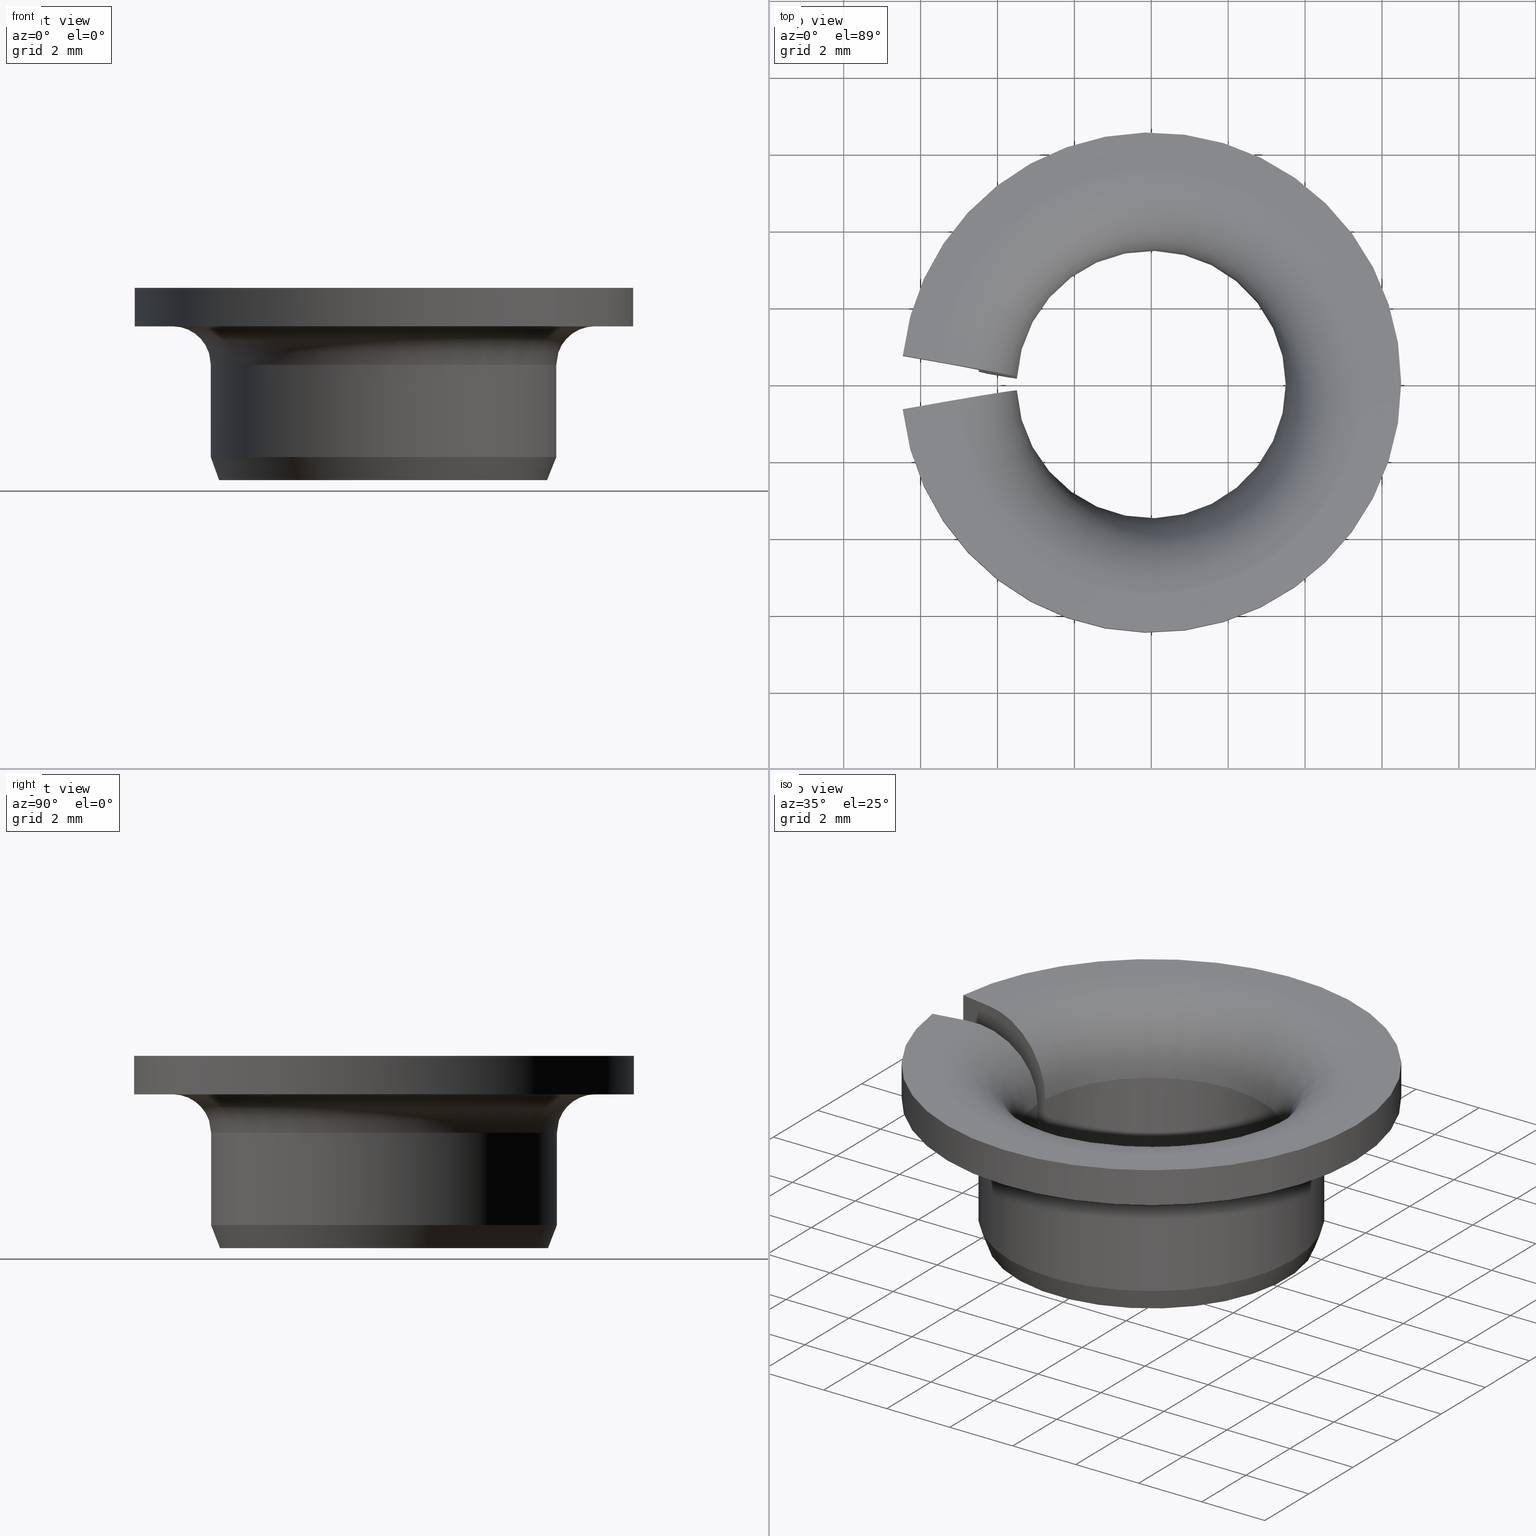
[diagram: canonical four-view strip — front | top / right | iso, engineering-drawing reading convention]
A machine part, canonical four-view strip (front | top / right | iso — engineering-drawing reading convention). The complete STEP part file that produces these views, byte-faithful:
ISO-10303-21;
HEADER;
FILE_DESCRIPTION(('STEP AP203'),'1');
FILE_NAME('410-BM0705F13LMB.stp','2016-09-19T20:50:53',(' '),(' '),'Spatial InterOp 3D',' ',' ');
FILE_SCHEMA(('CONFIG_CONTROL_DESIGN'));
ENDSEC;
DATA;
#1=DESIGN_CONTEXT('',#51,'design');
#2=APPLICATION_PROTOCOL_DEFINITION('INTERNATIONAL STANDARD','config_control_design',1994,#51);
#3=PRODUCT_CATEGORY_RELATIONSHIP('NONE','NONE',#52,#53);
#4=DATE_AND_TIME(#54,#55);
#5=DATE_TIME_ROLE('creation_date');
#6=DATE_TIME_ROLE('classification_date');
#7=PERSON_AND_ORGANIZATION_ROLE('creator');
#8=PERSON_AND_ORGANIZATION_ROLE('design_supplier');
#9=PERSON_AND_ORGANIZATION_ROLE('classification_officer');
#10=PERSON_AND_ORGANIZATION_ROLE('design_owner');
#11=APPROVAL_PERSON_ORGANIZATION(#56,#57,#58);
#12=APPROVAL_DATE_TIME(#4,#57);
#13=CC_DESIGN_APPROVAL(#57,(#59,#60,#61));
#14=CC_DESIGN_DATE_AND_TIME_ASSIGNMENT(#4,#5,(#61));
#15=CC_DESIGN_DATE_AND_TIME_ASSIGNMENT(#4,#6,(#59));
#16=CC_DESIGN_PERSON_AND_ORGANIZATION_ASSIGNMENT(#56,#10,(#62));
#17=CC_DESIGN_PERSON_AND_ORGANIZATION_ASSIGNMENT(#56,#7,(#61));
#18=CC_DESIGN_PERSON_AND_ORGANIZATION_ASSIGNMENT(#56,#7,(#60));
#19=CC_DESIGN_PERSON_AND_ORGANIZATION_ASSIGNMENT(#56,#8,(#60));
#20=CC_DESIGN_SECURITY_CLASSIFICATION(#59,(#60));
#21=CC_DESIGN_PERSON_AND_ORGANIZATION_ASSIGNMENT(#56,#9,(#59));
#22=SHAPE_DEFINITION_REPRESENTATION(#63,#64);
#23=DESIGN_CONTEXT('',#65,'design');
#24=APPLICATION_PROTOCOL_DEFINITION('INTERNATIONAL STANDARD','config_control_design',1994,#65);
#25=PRODUCT_CATEGORY_RELATIONSHIP('NONE','NONE',#66,#67);
#26=DATE_AND_TIME(#68,#69);
#27=DATE_TIME_ROLE('creation_date');
#28=DATE_TIME_ROLE('classification_date');
#29=PERSON_AND_ORGANIZATION_ROLE('creator');
#30=PERSON_AND_ORGANIZATION_ROLE('design_supplier');
#31=PERSON_AND_ORGANIZATION_ROLE('classification_officer');
#32=PERSON_AND_ORGANIZATION_ROLE('design_owner');
#33=APPROVAL_PERSON_ORGANIZATION(#70,#71,#72);
#34=APPROVAL_DATE_TIME(#26,#71);
#35=CC_DESIGN_APPROVAL(#71,(#73,#74,#75));
#36=CC_DESIGN_DATE_AND_TIME_ASSIGNMENT(#26,#27,(#75));
#37=CC_DESIGN_DATE_AND_TIME_ASSIGNMENT(#26,#28,(#73));
#38=CC_DESIGN_PERSON_AND_ORGANIZATION_ASSIGNMENT(#70,#32,(#76));
#39=CC_DESIGN_PERSON_AND_ORGANIZATION_ASSIGNMENT(#70,#29,(#75));
#40=CC_DESIGN_PERSON_AND_ORGANIZATION_ASSIGNMENT(#70,#29,(#74));
#41=CC_DESIGN_PERSON_AND_ORGANIZATION_ASSIGNMENT(#70,#30,(#74));
#42=CC_DESIGN_SECURITY_CLASSIFICATION(#73,(#74));
#43=CC_DESIGN_PERSON_AND_ORGANIZATION_ASSIGNMENT(#70,#31,(#73));
#44=CONTEXT_DEPENDENT_SHAPE_REPRESENTATION(#77,#78);
#45=SHAPE_DEFINITION_REPRESENTATION(#79,#80);
#46=SHAPE_REPRESENTATION_RELATIONSHIP('NONE','NONE',#80,#81);
#47= (GEOMETRIC_REPRESENTATION_CONTEXT(3)GLOBAL_UNCERTAINTY_ASSIGNED_CONTEXT((#84))GLOBAL_UNIT_ASSIGNED_CONTEXT((#86,#87,#88))REPRESENTATION_CONTEXT('NONE','WORKSPACE'));
#51=APPLICATION_CONTEXT('CONFIGURATION CONTROLLED 3D DESIGNS OF MECHANICAL PARTS AND ASSEMBLIES');
#52=PRODUCT_CATEGORY('part','NONE');
#53=PRODUCT_RELATED_PRODUCT_CATEGORY('detail',' ',(#62));
#54=CALENDAR_DATE(2016,19,8);
#55=LOCAL_TIME(22,50,53.0,#90);
#56=PERSON_AND_ORGANIZATION(#91,#92);
#57=APPROVAL(#93,'SOLID MODEL');
#58=APPROVAL_ROLE('APPROVED');
#59=SECURITY_CLASSIFICATION('','',#94);
#60=PRODUCT_DEFINITION_FORMATION_WITH_SPECIFIED_SOURCE(' ','NONE',#62,.NOT_KNOWN.);
#61=PRODUCT_DEFINITION('NONE','NONE',#60,#1);
#62=PRODUCT('','','PART--DESC',(#95));
#63=PRODUCT_DEFINITION_SHAPE('NONE','NONE',#61);
#64=SHAPE_REPRESENTATION('',(#96,#97),#98);
#65=APPLICATION_CONTEXT('CONFIGURATION CONTROLLED 3D DESIGNS OF MECHANICAL PARTS AND ASSEMBLIES');
#66=PRODUCT_CATEGORY('part','NONE');
#67=PRODUCT_RELATED_PRODUCT_CATEGORY('detail',' ',(#76));
#68=CALENDAR_DATE(2016,19,8);
#69=LOCAL_TIME(22,50,53.0,#99);
#70=PERSON_AND_ORGANIZATION(#100,#101);
#71=APPROVAL(#102,'SOLID MODEL');
#72=APPROVAL_ROLE('APPROVED');
#73=SECURITY_CLASSIFICATION('','',#103);
#74=PRODUCT_DEFINITION_FORMATION_WITH_SPECIFIED_SOURCE(' ','NONE',#76,.NOT_KNOWN.);
#75=PRODUCT_DEFINITION('410-BM0705F13LMB','410-BM0705F13LMB',#74,#23);
#76=PRODUCT('410-BM0705F13LMB','410-BM0705F13LMB','PART-410-BM0705F13LMB-DESC',(#104));
#77=(REPRESENTATION_RELATIONSHIP('','',#80,#64)REPRESENTATION_RELATIONSHIP_WITH_TRANSFORMATION(#107)SHAPE_REPRESENTATION_RELATIONSHIP());
#78=PRODUCT_DEFINITION_SHAPE('NAUO-PROD-DEF','NAUO-PROD-DEF',#109);
#79=PRODUCT_DEFINITION_SHAPE('NONE','NONE',#75);
#80=SHAPE_REPRESENTATION('410-BM0705F13LMB',(#96),#98);
#81=ADVANCED_BREP_SHAPE_REPRESENTATION('',(#110),#47);
#84=UNCERTAINTY_MEASURE_WITH_UNIT(LENGTH_MEASURE(1.0E-006),#86,'','');
#86= (CONVERSION_BASED_UNIT('METRE',#113)LENGTH_UNIT()NAMED_UNIT(#116));
#87= (NAMED_UNIT(#118)PLANE_ANGLE_UNIT()SI_UNIT($,.RADIAN.));
#88= (NAMED_UNIT(#118)SOLID_ANGLE_UNIT()SI_UNIT($,.STERADIAN.));
#90=COORDINATED_UNIVERSAL_TIME_OFFSET(1,0,.AHEAD.);
#91=PERSON('','UNSPECIFIED',$,$,$,$);
#92=ORGANIZATION('UNSPECIFIED','UNSPECIFIED','UNSPECIFIED');
#93=APPROVAL_STATUS('approved');
#94=SECURITY_CLASSIFICATION_LEVEL('unclassified');
#95=MECHANICAL_CONTEXT('',#51,'mechanical');
#96=AXIS2_PLACEMENT_3D('',#124,#125,#126);
#97=AXIS2_PLACEMENT_3D('',#127,#128,#129);
#98= (GEOMETRIC_REPRESENTATION_CONTEXT(3)GLOBAL_UNCERTAINTY_ASSIGNED_CONTEXT((#132))GLOBAL_UNIT_ASSIGNED_CONTEXT((#134,#135,#136))REPRESENTATION_CONTEXT('NONE','WORKSPACE'));
#99=COORDINATED_UNIVERSAL_TIME_OFFSET(1,0,.AHEAD.);
#100=PERSON('','UNSPECIFIED',$,$,$,$);
#101=ORGANIZATION('UNSPECIFIED','UNSPECIFIED','UNSPECIFIED');
#102=APPROVAL_STATUS('approved');
#103=SECURITY_CLASSIFICATION_LEVEL('unclassified');
#104=MECHANICAL_CONTEXT('',#65,'mechanical');
#107=ITEM_DEFINED_TRANSFORMATION('','',#96,#97);
#109=NEXT_ASSEMBLY_USAGE_OCCURRENCE('410-BM0705F13LMB','410-BM0705F13LMB','410-BM0705F13LMB',#61,#75,$);
#110=MANIFOLD_SOLID_BREP('',#138);
#113=LENGTH_MEASURE_WITH_UNIT(LENGTH_MEASURE(1.0),#139);
#116=DIMENSIONAL_EXPONENTS(1.0,0.0,0.0,0.0,0.0,0.0,0.0);
#118=DIMENSIONAL_EXPONENTS(0.0,0.0,0.0,0.0,0.0,0.0,0.0);
#124=CARTESIAN_POINT('',(0.0,0.0,0.0));
#125=DIRECTION('',(0.0,0.0,1.0));
#126=DIRECTION('',(1.0,0.0,0.0));
#127=CARTESIAN_POINT('',(0.0,0.0,0.0));
#128=DIRECTION('',(0.0,0.0,1.0));
#129=DIRECTION('',(-1.0,-7.6571373978539E-016,0.0));
#132=UNCERTAINTY_MEASURE_WITH_UNIT(LENGTH_MEASURE(1.0E-006),#134,'','');
#134= (CONVERSION_BASED_UNIT('METRE',#142)LENGTH_UNIT()NAMED_UNIT(#145));
#135= (NAMED_UNIT(#147)PLANE_ANGLE_UNIT()SI_UNIT($,.RADIAN.));
#136= (NAMED_UNIT(#147)SOLID_ANGLE_UNIT()SI_UNIT($,.STERADIAN.));
#138=CLOSED_SHELL('',(#153,#154,#155,#156,#157,#158,#159,#160,#161,#162,#163,#164));
#139= (NAMED_UNIT(#116)LENGTH_UNIT()SI_UNIT($,.METRE.));
#142=LENGTH_MEASURE_WITH_UNIT(LENGTH_MEASURE(1.0),#166);
#145=DIMENSIONAL_EXPONENTS(1.0,0.0,0.0,0.0,0.0,0.0,0.0);
#147=DIMENSIONAL_EXPONENTS(0.0,0.0,0.0,0.0,0.0,0.0,0.0);
#153=ADVANCED_FACE('',(#167),#168,.F.);
#154=ADVANCED_FACE('',(#169),#170,.F.);
#155=ADVANCED_FACE('',(#171),#172,.T.);
#156=ADVANCED_FACE('',(#173),#174,.F.);
#157=ADVANCED_FACE('',(#175),#176,.T.);
#158=ADVANCED_FACE('',(#177),#178,.T.);
#159=ADVANCED_FACE('',(#179),#180,.T.);
#160=ADVANCED_FACE('',(#181),#182,.T.);
#161=ADVANCED_FACE('',(#183),#184,.F.);
#162=ADVANCED_FACE('',(#185),#186,.T.);
#163=ADVANCED_FACE('',(#187),#188,.T.);
#164=ADVANCED_FACE('',(#189),#190,.T.);
#166= (NAMED_UNIT(#145)LENGTH_UNIT()SI_UNIT($,.METRE.));
#167=FACE_OUTER_BOUND('',#192,.T.);
#168=PLANE('',#193);
#169=FACE_OUTER_BOUND('',#194,.T.);
#170=CONICAL_SURFACE('',#195,0.0035,0.523598775598298);
#171=FACE_OUTER_BOUND('',#196,.T.);
#172=TOROIDAL_SURFACE('',#197,0.0055,0.002);
#173=FACE_OUTER_BOUND('',#198,.T.);
#174=TOROIDAL_SURFACE('',#199,0.0055,0.001);
#175=FACE_OUTER_BOUND('',#200,.T.);
#176=PLANE('',#201);
#177=FACE_OUTER_BOUND('',#202,.T.);
#178=CYLINDRICAL_SURFACE('',#203,0.0065);
#179=FACE_OUTER_BOUND('',#204,.T.);
#180=PLANE('',#205);
#181=FACE_OUTER_BOUND('',#206,.T.);
#182=CYLINDRICAL_SURFACE('',#207,0.0045);
#183=FACE_OUTER_BOUND('',#208,.T.);
#184=CYLINDRICAL_SURFACE('',#209,0.0035);
#185=FACE_OUTER_BOUND('',#210,.T.);
#186=PLANE('',#211);
#187=FACE_OUTER_BOUND('',#212,.T.);
#188=CONICAL_SURFACE('',#213,0.00428161785944028,0.349065850398864);
#189=FACE_OUTER_BOUND('',#214,.T.);
#190=PLANE('',#215);
#192=EDGE_LOOP('',(#216,#217,#218,#219,#220,#221,#222,#223,#224,#225));
#193=AXIS2_PLACEMENT_3D('',#226,#227,#228);
#194=EDGE_LOOP('',(#229,#230,#231,#232));
#195=AXIS2_PLACEMENT_3D('',#233,#234,#235);
#196=EDGE_LOOP('',(#236,#237,#238,#239));
#197=AXIS2_PLACEMENT_3D('',#240,#241,#242);
#198=EDGE_LOOP('',(#243,#244,#245,#246));
#199=AXIS2_PLACEMENT_3D('',#247,#248,#249);
#200=EDGE_LOOP('',(#250,#251,#252,#253));
#201=AXIS2_PLACEMENT_3D('',#254,#255,#256);
#202=EDGE_LOOP('',(#257,#258,#259,#260));
#203=AXIS2_PLACEMENT_3D('',#261,#262,#263);
#204=EDGE_LOOP('',(#264,#265,#266,#267));
#205=AXIS2_PLACEMENT_3D('',#268,#269,#270);
#206=EDGE_LOOP('',(#271,#272,#273,#274));
#207=AXIS2_PLACEMENT_3D('',#275,#276,#277);
#208=EDGE_LOOP('',(#278,#279,#280,#281));
#209=AXIS2_PLACEMENT_3D('',#282,#283,#284);
#210=EDGE_LOOP('',(#285,#286,#287,#288));
#211=AXIS2_PLACEMENT_3D('',#289,#290,#291);
#212=EDGE_LOOP('',(#292,#293,#294,#295));
#213=AXIS2_PLACEMENT_3D('',#296,#297,#298);
#214=EDGE_LOOP('',(#299,#300,#301,#302,#303,#304,#305,#306,#307,#308));
#215=AXIS2_PLACEMENT_3D('',#309,#310,#311);
#216=ORIENTED_EDGE('',*,*,#312,.T.);
#217=ORIENTED_EDGE('',*,*,#313,.F.);
#218=ORIENTED_EDGE('',*,*,#314,.T.);
#219=ORIENTED_EDGE('',*,*,#315,.T.);
#220=ORIENTED_EDGE('',*,*,#316,.T.);
#221=ORIENTED_EDGE('',*,*,#317,.T.);
#222=ORIENTED_EDGE('',*,*,#318,.T.);
#223=ORIENTED_EDGE('',*,*,#319,.F.);
#224=ORIENTED_EDGE('',*,*,#320,.T.);
#225=ORIENTED_EDGE('',*,*,#321,.T.);
#226=CARTESIAN_POINT('',(-0.00820955855681633,0.00188838412504393,0.0));
#227=DIRECTION('',(-0.173648177666931,-0.984807753012208,-0.0));
#228=DIRECTION('',(0.0,0.0,-1.0));
#229=ORIENTED_EDGE('',*,*,#322,.T.);
#230=ORIENTED_EDGE('',*,*,#323,.T.);
#231=ORIENTED_EDGE('',*,*,#324,.F.);
#232=ORIENTED_EDGE('',*,*,#320,.F.);
#233=CARTESIAN_POINT('',(0.0,0.0,0.0003));
#234=DIRECTION('',(0.0,-6.12323399573677E-017,-1.0));
#235=DIRECTION('',(0.0,1.0,-6.12323399573677E-017));
#236=ORIENTED_EDGE('',*,*,#325,.T.);
#237=ORIENTED_EDGE('',*,*,#326,.T.);
#238=ORIENTED_EDGE('',*,*,#327,.F.);
#239=ORIENTED_EDGE('',*,*,#312,.F.);
#240=CARTESIAN_POINT('',(0.0,0.0,0.003));
#241=DIRECTION('',(0.0,-6.12323399573677E-017,-1.0));
#242=DIRECTION('',(0.0,1.0,-6.12323399573677E-017));
#243=ORIENTED_EDGE('',*,*,#328,.T.);
#244=ORIENTED_EDGE('',*,*,#329,.T.);
#245=ORIENTED_EDGE('',*,*,#330,.F.);
#246=ORIENTED_EDGE('',*,*,#316,.F.);
#247=CARTESIAN_POINT('',(0.0,0.0,0.003));
#248=DIRECTION('',(0.0,-6.12323399573677E-017,-1.0));
#249=DIRECTION('',(0.0,1.0,-6.12323399573677E-017));
#250=ORIENTED_EDGE('',*,*,#331,.T.);
#251=ORIENTED_EDGE('',*,*,#332,.T.);
#252=ORIENTED_EDGE('',*,*,#328,.F.);
#253=ORIENTED_EDGE('',*,*,#315,.F.);
#254=CARTESIAN_POINT('',(0.0055,0.0,0.004));
#255=DIRECTION('',(0.0,-6.12323399573677E-017,-1.0));
#256=DIRECTION('',(0.0,1.0,-6.12323399573677E-017));
#257=ORIENTED_EDGE('',*,*,#333,.T.);
#258=ORIENTED_EDGE('',*,*,#334,.T.);
#259=ORIENTED_EDGE('',*,*,#331,.F.);
#260=ORIENTED_EDGE('',*,*,#314,.F.);
#261=CARTESIAN_POINT('',(0.0,0.0,0.0));
#262=DIRECTION('',(0.0,-6.12323399573677E-017,-1.0));
#263=DIRECTION('',(0.0,1.0,-6.12323399573677E-017));
#264=ORIENTED_EDGE('',*,*,#327,.T.);
#265=ORIENTED_EDGE('',*,*,#335,.F.);
#266=ORIENTED_EDGE('',*,*,#333,.F.);
#267=ORIENTED_EDGE('',*,*,#313,.T.);
#268=CARTESIAN_POINT('',(0.0065,0.0,0.005));
#269=DIRECTION('',(0.0,6.12323399573677E-017,1.0));
#270=DIRECTION('',(0.0,-1.0,6.12323399573677E-017));
#271=ORIENTED_EDGE('',*,*,#330,.T.);
#272=ORIENTED_EDGE('',*,*,#336,.T.);
#273=ORIENTED_EDGE('',*,*,#337,.F.);
#274=ORIENTED_EDGE('',*,*,#317,.F.);
#275=CARTESIAN_POINT('',(0.0,0.0,0.0));
#276=DIRECTION('',(0.0,-6.12323399573677E-017,-1.0));
#277=DIRECTION('',(0.0,1.0,-6.12323399573677E-017));
#278=ORIENTED_EDGE('',*,*,#324,.T.);
#279=ORIENTED_EDGE('',*,*,#338,.T.);
#280=ORIENTED_EDGE('',*,*,#325,.F.);
#281=ORIENTED_EDGE('',*,*,#321,.F.);
#282=CARTESIAN_POINT('',(0.0,0.0,0.0));
#283=DIRECTION('',(0.0,-6.12323399573677E-017,-1.0));
#284=DIRECTION('',(0.0,1.0,-6.12323399573677E-017));
#285=ORIENTED_EDGE('',*,*,#339,.T.);
#286=ORIENTED_EDGE('',*,*,#340,.F.);
#287=ORIENTED_EDGE('',*,*,#322,.F.);
#288=ORIENTED_EDGE('',*,*,#319,.T.);
#289=CARTESIAN_POINT('',(0.00367320508075689,0.0,0.0));
#290=DIRECTION('',(0.0,-6.12323399573677E-017,-1.0));
#291=DIRECTION('',(0.0,1.0,-6.12323399573677E-017));
#292=ORIENTED_EDGE('',*,*,#337,.T.);
#293=ORIENTED_EDGE('',*,*,#341,.T.);
#294=ORIENTED_EDGE('',*,*,#339,.F.);
#295=ORIENTED_EDGE('',*,*,#318,.F.);
#296=CARTESIAN_POINT('',(0.0,0.0,0.0));
#297=DIRECTION('',(-0.0,6.12323399573677E-017,1.0));
#298=DIRECTION('',(0.0,-1.0,6.12323399573677E-017));
#299=ORIENTED_EDGE('',*,*,#338,.F.);
#300=ORIENTED_EDGE('',*,*,#323,.F.);
#301=ORIENTED_EDGE('',*,*,#340,.T.);
#302=ORIENTED_EDGE('',*,*,#341,.F.);
#303=ORIENTED_EDGE('',*,*,#336,.F.);
#304=ORIENTED_EDGE('',*,*,#329,.F.);
#305=ORIENTED_EDGE('',*,*,#332,.F.);
#306=ORIENTED_EDGE('',*,*,#334,.F.);
#307=ORIENTED_EDGE('',*,*,#335,.T.);
#308=ORIENTED_EDGE('',*,*,#326,.F.);
#309=CARTESIAN_POINT('',(-0.00820955855681633,-0.00188838412504393,2.27746992961017E-019));
#310=DIRECTION('',(0.173648177666931,-0.984807753012208,-3.69276194597514E-018));
#311=DIRECTION('',(-2.12657684957577E-017,-6.03423532709537E-033,-1.0));
#312=EDGE_CURVE('',#342,#343,#344,.T.);
#313=EDGE_CURVE('',#345,#343,#346,.T.);
#314=EDGE_CURVE('',#345,#347,#348,.T.);
#315=EDGE_CURVE('',#347,#349,#350,.T.);
#316=EDGE_CURVE('',#349,#351,#352,.T.);
#317=EDGE_CURVE('',#351,#353,#354,.T.);
#318=EDGE_CURVE('',#353,#355,#356,.T.);
#319=EDGE_CURVE('',#357,#355,#358,.T.);
#320=EDGE_CURVE('',#357,#359,#360,.T.);
#321=EDGE_CURVE('',#359,#342,#361,.F.);
#322=EDGE_CURVE('',#357,#362,#363,.T.);
#323=EDGE_CURVE('',#362,#364,#365,.T.);
#324=EDGE_CURVE('',#359,#364,#366,.T.);
#325=EDGE_CURVE('',#342,#367,#368,.T.);
#326=EDGE_CURVE('',#367,#369,#370,.T.);
#327=EDGE_CURVE('',#343,#369,#371,.T.);
#328=EDGE_CURVE('',#349,#372,#373,.T.);
#329=EDGE_CURVE('',#372,#374,#375,.T.);
#330=EDGE_CURVE('',#351,#374,#376,.T.);
#331=EDGE_CURVE('',#347,#377,#378,.T.);
#332=EDGE_CURVE('',#377,#372,#379,.T.);
#333=EDGE_CURVE('',#345,#380,#381,.T.);
#334=EDGE_CURVE('',#380,#377,#382,.T.);
#335=EDGE_CURVE('',#380,#369,#383,.T.);
#336=EDGE_CURVE('',#374,#384,#385,.T.);
#337=EDGE_CURVE('',#353,#384,#386,.T.);
#338=EDGE_CURVE('',#364,#367,#387,.F.);
#339=EDGE_CURVE('',#355,#388,#389,.T.);
#340=EDGE_CURVE('',#362,#388,#390,.T.);
#341=EDGE_CURVE('',#384,#388,#391,.T.);
#342=VERTEX_POINT('',#392);
#343=VERTEX_POINT('',#393);
#344=B_SPLINE_CURVE_WITH_KNOTS('',3,(#394,#395,#396,#397,#398,#399,#400,#401,#402,#403,#404,#405,#406,#407),.UNSPECIFIED.,.F.,.F.,(4,2,2,2,2,2,4),(1.97150682175314E-007,0.000391667994127723,0.00078313883757327,0.00117460968101882,0.00156608052446437,0.00234902221135546,0.00313196389824656),.UNSPECIFIED.);
#345=VERTEX_POINT('',#408);
#346=LINE('',#409,#410);
#347=VERTEX_POINT('',#411);
#348=LINE('',#412,#413);
#349=VERTEX_POINT('',#414);
#350=LINE('',#415,#416);
#351=VERTEX_POINT('',#417);
#352=B_SPLINE_CURVE_WITH_KNOTS('',3,(#418,#419,#420,#421,#422,#423,#424,#425,#426,#427),.UNSPECIFIED.,.F.,.F.,(4,2,2,2,4),(2.53526387980243E-005,0.000416688694121858,0.00080802474944569,0.00119936080476952,0.00159069686009336),.UNSPECIFIED.);
#353=VERTEX_POINT('',#428);
#354=LINE('',#429,#430);
#355=VERTEX_POINT('',#431);
#356=B_SPLINE_CURVE_WITH_KNOTS('',3,(#432,#433,#434,#435),.UNSPECIFIED.,.F.,.F.,(4,4),(2.12952462716734E-007,0.000639088410974761),.UNSPECIFIED.);
#357=VERTEX_POINT('',#436);
#358=LINE('',#437,#438);
#359=VERTEX_POINT('',#439);
#360=B_SPLINE_CURVE_WITH_KNOTS('',3,(#440,#441,#442,#443),.UNSPECIFIED.,.F.,.F.,(4,4),(2.31348660055754E-007,0.000347285118936429),.UNSPECIFIED.);
#361=LINE('',#444,#445);
#362=VERTEX_POINT('',#446);
#363=CIRCLE('',#447,0.00367320508075689);
#364=VERTEX_POINT('',#448);
#365=B_SPLINE_CURVE_WITH_KNOTS('',3,(#449,#450,#451,#452),.UNSPECIFIED.,.F.,.F.,(4,4),(2.31348660055976E-007,0.000347285118936429),.UNSPECIFIED.);
#366=CIRCLE('',#453,0.0035);
#367=VERTEX_POINT('',#454);
#368=CIRCLE('',#455,0.0035);
#369=VERTEX_POINT('',#456);
#370=B_SPLINE_CURVE_WITH_KNOTS('',3,(#457,#458,#459,#460,#461,#462,#463,#464,#465,#466,#467,#468,#469,#470),.UNSPECIFIED.,.F.,.F.,(4,2,2,2,2,2,4),(1.97150682175314E-007,0.000391667994127723,0.00078313883757327,0.00117460968101882,0.00156608052446437,0.00234902221135546,0.00313196389824656),.UNSPECIFIED.);
#371=CIRCLE('',#471,0.0055);
#372=VERTEX_POINT('',#472);
#373=CIRCLE('',#473,0.0055);
#374=VERTEX_POINT('',#474);
#375=B_SPLINE_CURVE_WITH_KNOTS('',3,(#475,#476,#477,#478,#479,#480,#481,#482,#483,#484),.UNSPECIFIED.,.F.,.F.,(4,2,2,2,4),(2.53526387980243E-005,0.000416688694121858,0.00080802474944569,0.00119936080476952,0.00159069686009336),.UNSPECIFIED.);
#376=CIRCLE('',#485,0.0045);
#377=VERTEX_POINT('',#486);
#378=CIRCLE('',#487,0.0065);
#379=LINE('',#488,#489);
#380=VERTEX_POINT('',#490);
#381=CIRCLE('',#491,0.0065);
#382=LINE('',#492,#493);
#383=LINE('',#494,#495);
#384=VERTEX_POINT('',#496);
#385=LINE('',#497,#498);
#386=CIRCLE('',#499,0.0045);
#387=LINE('',#500,#501);
#388=VERTEX_POINT('',#502);
#389=CIRCLE('',#503,0.00428161785944028);
#390=LINE('',#504,#505);
#391=B_SPLINE_CURVE_WITH_KNOTS('',3,(#506,#507,#508,#509),.UNSPECIFIED.,.F.,.F.,(4,4),(2.12952462717963E-007,0.000639088410974762),.UNSPECIFIED.);
#392=CARTESIAN_POINT('',(0.00349559467419468,-0.000175550202910175,0.003));
#393=CARTESIAN_POINT('',(0.00547492801128088,-0.000524560074054194,0.005));
#394=CARTESIAN_POINT('',(0.00349559467419468,-0.000175550202910176,0.003));
#395=CARTESIAN_POINT('',(0.00349559467419468,-0.000175550202910176,0.00313237505254623));
#396=CARTESIAN_POINT('',(0.00350851030739531,-0.000177827577516383,0.0032625130222032));
#397=CARTESIAN_POINT('',(0.00355908225736229,-0.0001867447767626,0.00351850369272592));
#398=CARTESIAN_POINT('',(0.00359736527176605,-0.000193495105104832,0.00364569787423297));
#399=CARTESIAN_POINT('',(0.00369712237797093,-0.000211084974446153,0.00388797051328565));
#400=CARTESIAN_POINT('',(0.0037581309920655,-0.000221842439166657,0.00400284581502968));
#401=CARTESIAN_POINT('',(0.00390216175549987,-0.000247238948812173,0.00422021309593581));
#402=CARTESIAN_POINT('',(0.00398585263673964,-0.000261995909214013,0.00432298016352443));
#403=CARTESIAN_POINT('',(0.00425980547402477,-0.000310301185869018,0.00459925015766709));
#404=CARTESIAN_POINT('',(0.00448033149154054,-0.000349185872705236,0.00474794435792037));
#405=CARTESIAN_POINT('',(0.00495546162599219,-0.000432964134756702,0.00494711308227049));
#406=CARTESIAN_POINT('',(0.00521460814373156,-0.000478658657790797,0.005));
#407=CARTESIAN_POINT('',(0.00547492801128088,-0.000524560074054197,0.005));
#408=CARTESIAN_POINT('',(0.00646234193761562,-0.00069866779039429,0.005));
#409=CARTESIAN_POINT('',(0.00840884651807325,-0.00104188906600158,0.005));
#410=VECTOR('',#510,1.0);
#411=CARTESIAN_POINT('',(0.00646234193761562,-0.000698667790394289,0.004));
#412=CARTESIAN_POINT('',(0.00646234193761562,-0.000698667790394289,6.89594307691673E-020));
#413=VECTOR('',#511,1.0);
#414=CARTESIAN_POINT('',(0.0054749280112809,-0.000524560074054199,0.004));
#415=CARTESIAN_POINT('',(0.00540953893117886,-0.000513030214988502,0.004));
#416=VECTOR('',#512,1.0);
#417=CARTESIAN_POINT('',(0.00448634897185272,-0.000350246916840152,0.003));
#418=CARTESIAN_POINT('',(0.0054749280112809,-0.000524560074054201,0.004));
#419=CARTESIAN_POINT('',(0.00534513666577728,-0.000501674357979458,0.004));
#420=CARTESIAN_POINT('',(0.00521662985057559,-0.000479015139254483,0.00397401240643036));
#421=CARTESIAN_POINT('',(0.00497811634589849,-0.000436958773116576,0.00387423474042894));
#422=CARTESIAN_POINT('',(0.0048681886751054,-0.000417575558829317,0.00380002575497677));
#423=CARTESIAN_POINT('',(0.00468578911455732,-0.000385413595035322,0.00361606195503831));
#424=CARTESIAN_POINT('',(0.0046118206114008,-0.000372370952206208,0.00350454473552808));
#425=CARTESIAN_POINT('',(0.00451272387535558,-0.000354897523941292,0.00326381132397871));
#426=CARTESIAN_POINT('',(0.00448634897184844,-0.0003502469168394,0.0031323331576408));
#427=CARTESIAN_POINT('',(0.00448634897184837,-0.000350246916839388,0.00300000000000054));
#428=CARTESIAN_POINT('',(0.00448634897185272,-0.000350246916840153,0.0006));
#429=CARTESIAN_POINT('',(0.00448634897185272,-0.000350246916840153,4.76248053914574E-020));
#430=VECTOR('',#513,1.0);
#431=CARTESIAN_POINT('',(0.00427022494734763,-0.000312138420140609,6.43083039248804E-019));
#432=CARTESIAN_POINT('',(0.00448634897185272,-0.000350246916840155,0.000600000000000001));
#433=CARTESIAN_POINT('',(0.00441432285728548,-0.000337546769526351,0.000399994345303284));
#434=CARTESIAN_POINT('',(0.00434228229890347,-0.0003248440753783,0.000199994053021203));
#435=CARTESIAN_POINT('',(0.00427022494734763,-0.000312138420140611,1.13633051639518E-018));
#436=CARTESIAN_POINT('',(0.00366743253555323,-0.000205849854174929,6.43083039248804E-019));
#437=CARTESIAN_POINT('',(0.0025,0.0,6.43083039248804E-019));
#438=VECTOR('',#514,1.0);
#439=CARTESIAN_POINT('',(0.00349559467419468,-0.000175550202910176,0.0003));
#440=CARTESIAN_POINT('',(0.00366743253555323,-0.000205849854174929,-5.94640332811175E-019));
#441=CARTESIAN_POINT('',(0.003610168257789,-0.000195752616974311,0.000100008862996427));
#442=CARTESIAN_POINT('',(0.00355288972047172,-0.00018565286542976,0.000200009309098749));
#443=CARTESIAN_POINT('',(0.00349559467419468,-0.000175550202910177,0.000299999999999999));
#444=CARTESIAN_POINT('',(0.00349559467419468,-0.000175550202910175,3.69277168146619E-020));
#445=VECTOR('',#515,1.0);
#446=CARTESIAN_POINT('',(0.00366743253555323,0.000205849854174929,6.18256689213313E-019));
#447=AXIS2_PLACEMENT_3D('',#516,#517,#518);
#448=CARTESIAN_POINT('',(0.00349559467419468,0.000175550202910176,0.0003));
#449=CARTESIAN_POINT('',(0.00366743253555323,0.000205849854174929,-7.1037182007398E-019));
#450=CARTESIAN_POINT('',(0.003610168257789,0.000195752616974311,0.000100008862996427));
#451=CARTESIAN_POINT('',(0.00355288972047172,0.00018565286542976,0.000200009309098749));
#452=CARTESIAN_POINT('',(0.00349559467419468,0.000175550202910176,0.000299999999999999));
#453=AXIS2_PLACEMENT_3D('',#519,#520,#521);
#454=CARTESIAN_POINT('',(0.00349559467419468,0.000175550202910176,0.003));
#455=AXIS2_PLACEMENT_3D('',#522,#523,#524);
#456=CARTESIAN_POINT('',(0.00547492801128088,0.000524560074054193,0.005));
#457=CARTESIAN_POINT('',(0.00349559467419468,0.000175550202910176,0.003));
#458=CARTESIAN_POINT('',(0.00349559467419468,0.000175550202910176,0.00313237505254623));
#459=CARTESIAN_POINT('',(0.00350851030739531,0.000177827577516383,0.0032625130222032));
#460=CARTESIAN_POINT('',(0.00355908225736229,0.0001867447767626,0.00351850369272592));
#461=CARTESIAN_POINT('',(0.00359736527176605,0.000193495105104832,0.00364569787423297));
#462=CARTESIAN_POINT('',(0.00369712237797093,0.000211084974446153,0.00388797051328565));
#463=CARTESIAN_POINT('',(0.0037581309920655,0.000221842439166657,0.00400284581502968));
#464=CARTESIAN_POINT('',(0.00390216175549987,0.000247238948812174,0.00422021309593581));
#465=CARTESIAN_POINT('',(0.00398585263673964,0.000261995909214013,0.00432298016352443));
#466=CARTESIAN_POINT('',(0.00425980547402477,0.000310301185869018,0.00459925015766709));
#467=CARTESIAN_POINT('',(0.00448033149154054,0.000349185872705236,0.00474794435792037));
#468=CARTESIAN_POINT('',(0.00495546162599219,0.000432964134756701,0.00494711308227049));
#469=CARTESIAN_POINT('',(0.00521460814373156,0.000478658657790797,0.005));
#470=CARTESIAN_POINT('',(0.00547492801128088,0.000524560074054197,0.005));
#471=AXIS2_PLACEMENT_3D('',#525,#526,#527);
#472=CARTESIAN_POINT('',(0.0054749280112809,0.0005245600740542,0.004));
#473=AXIS2_PLACEMENT_3D('',#528,#529,#530);
#474=CARTESIAN_POINT('',(0.00448634897185272,0.000350246916840154,0.003));
#475=CARTESIAN_POINT('',(0.0054749280112809,0.0005245600740542,0.004));
#476=CARTESIAN_POINT('',(0.00534513666577728,0.000501674357979458,0.004));
#477=CARTESIAN_POINT('',(0.00521662985057559,0.000479015139254483,0.00397401240643036));
#478=CARTESIAN_POINT('',(0.00497811634589849,0.000436958773116575,0.00387423474042894));
#479=CARTESIAN_POINT('',(0.0048681886751054,0.000417575558829317,0.00380002575497677));
#480=CARTESIAN_POINT('',(0.00468578911455732,0.000385413595035322,0.00361606195503831));
#481=CARTESIAN_POINT('',(0.00461182061140079,0.000372370952206208,0.00350454473552808));
#482=CARTESIAN_POINT('',(0.00451272387535558,0.000354897523941292,0.00326381132397871));
#483=CARTESIAN_POINT('',(0.00448634897184844,0.000350246916839401,0.0031323331576408));
#484=CARTESIAN_POINT('',(0.00448634897184837,0.000350246916839388,0.00300000000000054));
#485=AXIS2_PLACEMENT_3D('',#531,#532,#533);
#486=CARTESIAN_POINT('',(0.00646234193761562,0.00069866779039429,0.004));
#487=AXIS2_PLACEMENT_3D('',#534,#535,#536);
#488=CARTESIAN_POINT('',(0.00540953893117886,0.000513030214988503,0.004));
#489=VECTOR('',#537,1.0);
#490=CARTESIAN_POINT('',(0.00646234193761562,0.000698667790394288,0.005));
#491=AXIS2_PLACEMENT_3D('',#538,#539,#540);
#492=CARTESIAN_POINT('',(0.00646234193761562,0.00069866779039429,-7.05625342253582E-020));
#493=VECTOR('',#541,1.0);
#494=CARTESIAN_POINT('',(0.00840884651807325,0.00104188906600158,0.005));
#495=VECTOR('',#542,1.0);
#496=CARTESIAN_POINT('',(0.00448634897185272,0.000350246916840154,0.0006));
#497=CARTESIAN_POINT('',(0.00448634897185272,0.000350246916840154,-4.92279088476483E-020));
#498=VECTOR('',#543,1.0);
#499=AXIS2_PLACEMENT_3D('',#544,#545,#546);
#500=CARTESIAN_POINT('',(0.00349559467419468,0.000175550202910176,-3.85308202708529E-020));
#501=VECTOR('',#547,1.0);
#502=CARTESIAN_POINT('',(0.00427022494734763,0.000312138420140609,-1.91129658558055E-020));
#503=AXIS2_PLACEMENT_3D('',#548,#549,#550);
#504=CARTESIAN_POINT('',(0.0025,0.0,6.43083039248804E-019));
#505=VECTOR('',#551,1.0);
#506=CARTESIAN_POINT('',(0.00448634897185272,0.000350246916840155,0.0006));
#507=CARTESIAN_POINT('',(0.00441432285728548,0.000337546769526351,0.000399994345303283));
#508=CARTESIAN_POINT('',(0.00434228229890347,0.0003248440753783,0.000199994053021202));
#509=CARTESIAN_POINT('',(0.00427022494734763,0.000312138420140611,4.76708642985852E-019));
#510=DIRECTION('',(-0.984807753012208,0.173648177666931,0.0));
#511=DIRECTION('',(0.0,-6.12323399573677E-017,-1.0));
#512=DIRECTION('',(-0.984807753012208,0.173648177666931,-1.06328842478789E-017));
#513=DIRECTION('',(0.0,-6.12323399573677E-017,-1.0));
#514=DIRECTION('',(0.984807753012208,-0.173648177666931,0.0));
#515=DIRECTION('',(0.0,-6.12323399573677E-017,-1.0));
#516=CARTESIAN_POINT('',(0.0,0.0,0.0));
#517=DIRECTION('',(0.0,-6.12323399573677E-017,-1.0));
#518=DIRECTION('',(0.0,1.0,-6.12323399573677E-017));
#519=CARTESIAN_POINT('',(0.0,0.0,0.0003));
#520=DIRECTION('',(0.0,-6.12323399573677E-017,-1.0));
#521=DIRECTION('',(0.0,1.0,-6.12323399573677E-017));
#522=CARTESIAN_POINT('',(0.0,0.0,0.003));
#523=DIRECTION('',(0.0,-6.12323399573677E-017,-1.0));
#524=DIRECTION('',(0.0,1.0,-6.12323399573677E-017));
#525=CARTESIAN_POINT('',(0.0,0.0,0.005));
#526=DIRECTION('',(0.0,-6.12323399573677E-017,-1.0));
#527=DIRECTION('',(0.0,1.0,-6.12323399573677E-017));
#528=CARTESIAN_POINT('',(0.0,0.0,0.004));
#529=DIRECTION('',(0.0,-6.12323399573677E-017,-1.0));
#530=DIRECTION('',(0.0,1.0,-6.12323399573677E-017));
#531=CARTESIAN_POINT('',(0.0,0.0,0.003));
#532=DIRECTION('',(0.0,-6.12323399573677E-017,-1.0));
#533=DIRECTION('',(0.0,1.0,-6.12323399573677E-017));
#534=CARTESIAN_POINT('',(0.0,0.0,0.004));
#535=DIRECTION('',(0.0,-6.12323399573677E-017,-1.0));
#536=DIRECTION('',(0.0,1.0,-6.12323399573677E-017));
#537=DIRECTION('',(-0.984807753012208,-0.173648177666931,1.06328842478789E-017));
#538=CARTESIAN_POINT('',(0.0,0.0,0.005));
#539=DIRECTION('',(0.0,-6.12323399573677E-017,-1.0));
#540=DIRECTION('',(0.0,1.0,-6.12323399573677E-017));
#541=DIRECTION('',(0.0,-6.12323399573677E-017,-1.0));
#542=DIRECTION('',(-0.984807753012208,-0.173648177666931,2.0942693688385E-017));
#543=DIRECTION('',(0.0,-6.12323399573677E-017,-1.0));
#544=CARTESIAN_POINT('',(0.0,0.0,0.0006));
#545=DIRECTION('',(0.0,-6.12323399573677E-017,-1.0));
#546=DIRECTION('',(0.0,1.0,-6.12323399573677E-017));
#547=DIRECTION('',(0.0,-6.12323399573677E-017,-1.0));
#548=CARTESIAN_POINT('',(0.0,0.0,0.0));
#549=DIRECTION('',(0.0,-6.12323399573677E-017,-1.0));
#550=DIRECTION('',(0.0,1.0,-6.12323399573677E-017));
#551=DIRECTION('',(0.984807753012208,0.173648177666931,-2.0942693688385E-017));
ENDSEC;
END-ISO-10303-21;
